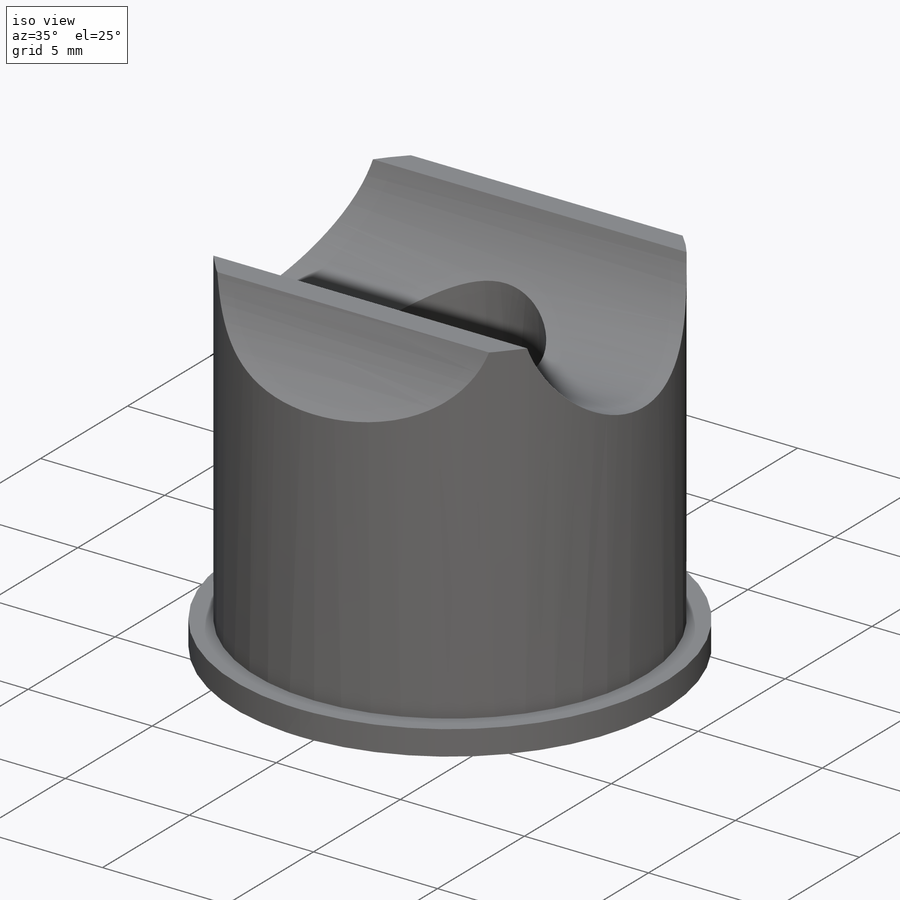
[diagram: iso view]
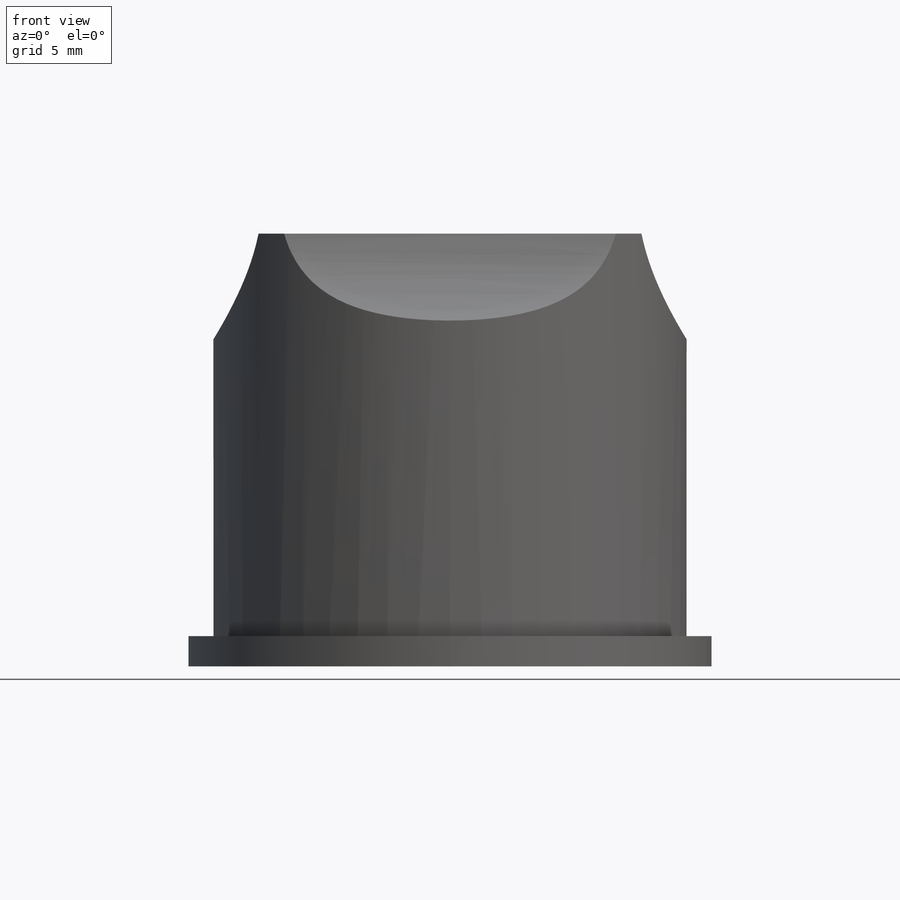
[diagram: front view]
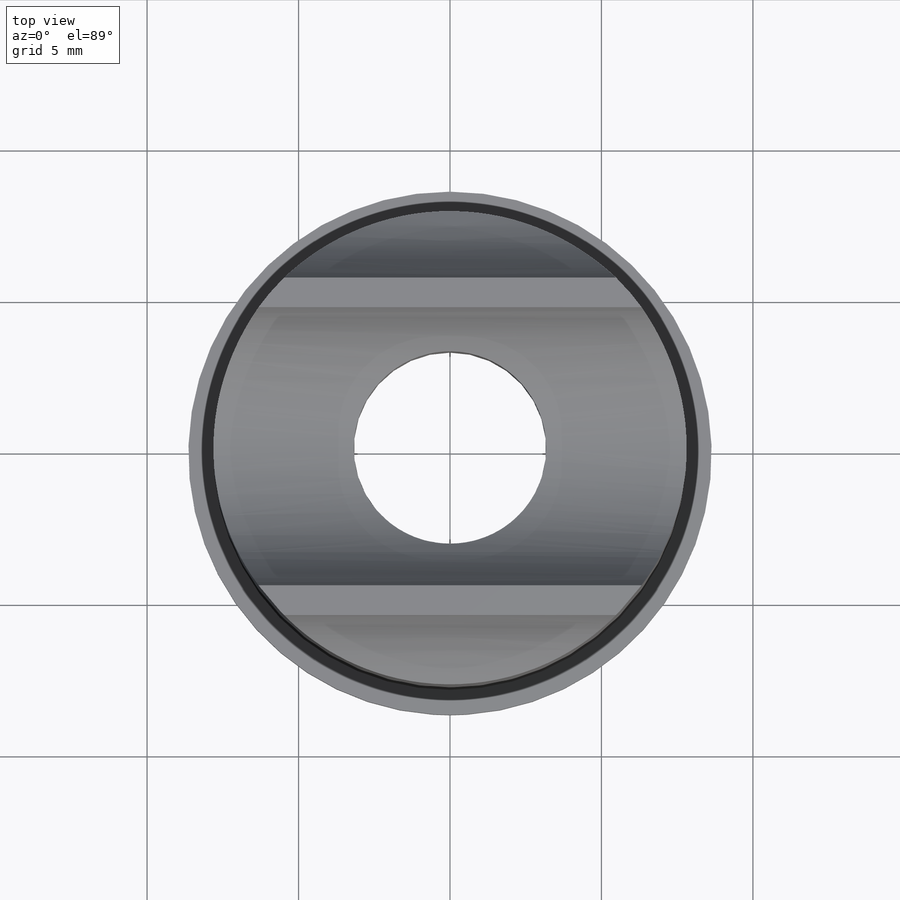
[diagram: top view]
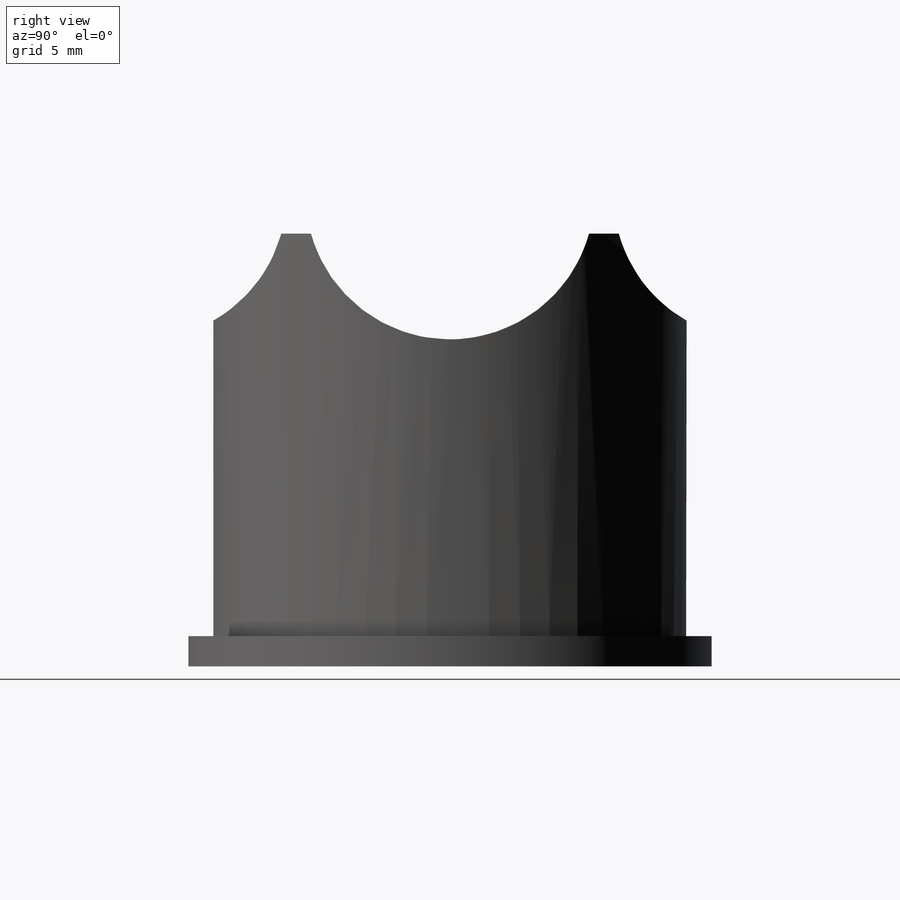
[diagram: right view]
SOLIDWORKS PART (.sldprt)
format: sldprt  version: not decoded by parser v0  size: 297,984 bytes
history: native  units: mm
features: sketch x5, cut_extrude x4, material x1, extrude x1, fillet x1 (+11 scaffold rows collapsed)
feature tree (23):
  scaffold x11  (default folders/planes/origin — collapsed)
  material  "AISI 304"
  sketch  "Sketch1"  dims[D1=17.272mm]
  extrude  "Boss-Extrude1"  Depth=14.2875mm
  sketch  "Sketch5"  dims[c1.D1=9.525mm c1.D2=7.9502mm c1.D3=7.9502mm c2.D2=10.16mm c2.D3=10.16mm c2.D4=1.27mm]
  cut_extrude  "Cut-Extrude4"  [1 undecoded]
  sketch  "Sketch2"  dims[D1=15.621mm]
  cut_extrude  "Cut-Extrude1"  Depth=1mm
  sketch  "Sketch4"  dims[D1=6.35mm]
  cut_extrude  "Cut-Extrude3"  [1 undecoded]
  sketch  "Sketch3"  dims[D1=13.5636mm]
  cut_extrude  "Cut-Extrude2"  Depth=4.96875mm
  fillet  "Fillet1"  Radius=1mm
decode coverage: 9 of 11 modeling features carry decoded parameters
note: 2 parameter values undecoded
note: suppression state not decoded; provenance and decode notes live in map.json
